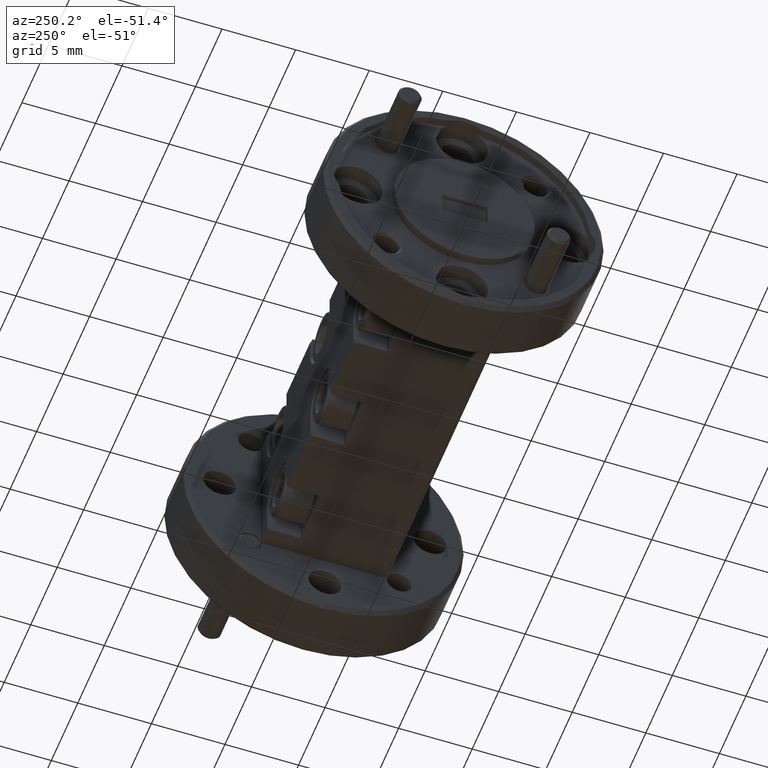
[diagram: clean part render]
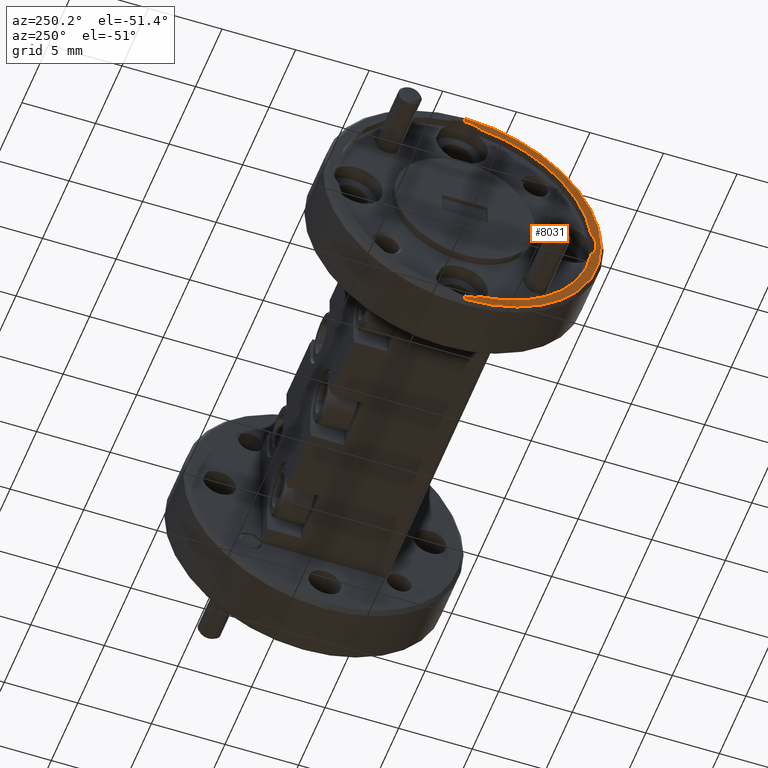
[diagram: same view with one face highlighted and labeled with its STEP entity id]
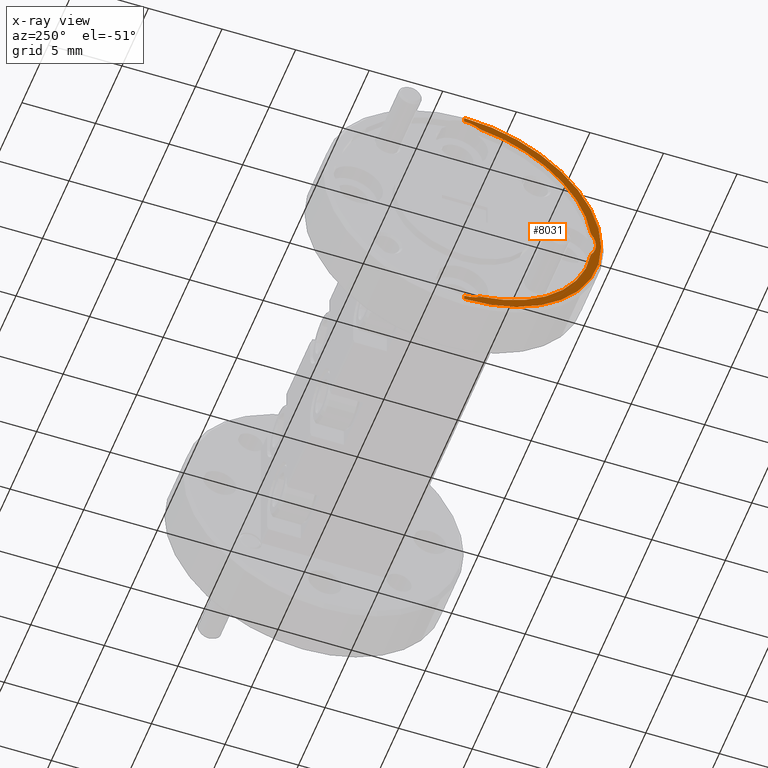
[diagram: x-ray of the same camera — body ghosted, the highlighted face saturated]
A machine part, auxiliary view. The second image highlights one B-rep face of the part: STEP entity #8031.
The next image is the same camera in x-ray: the body ghosted, the highlighted face saturated — about 0% of this face is hidden behind the body in this view.
In plain terms, the highlighted planar face has unit normal (1, -0, -0).
Its self-contained STEP definition (entity closure, byte-faithful):
#243 = AXIS2_PLACEMENT_3D ( 'NONE', #12226, #1145, #8569 ) ;
#263 = CARTESIAN_POINT ( 'NONE',  ( -0.1475487174971402138, 0.6950558021064788816, 0.5069535146820028926 ) ) ;
#264 = CARTESIAN_POINT ( 'NONE',  ( -0.1475487174971403248, 0.6950558021064788816, 1.223203514682003279 ) ) ;
#655 = DIRECTION ( 'NONE',  ( -1.000000000000000000, 2.674502495201554687E-33, 0.000000000000000000 ) ) ;
#667 = AXIS2_PLACEMENT_3D ( 'NONE', #2485, #10212, #1597 ) ;
#673 = CIRCLE ( 'NONE', #11764, 0.07000000000000007605 ) ;
#691 = CARTESIAN_POINT ( 'NONE',  ( -0.1475487174971403248, 0.6965558021064788274, 1.223187441408073894 ) ) ;
#812 = VERTEX_POINT ( 'NONE', #2473 ) ;
#864 = AXIS2_PLACEMENT_3D ( 'NONE', #6046, #2441, #9931 ) ;
#1145 = DIRECTION ( 'NONE',  ( -1.000000000000000000, 2.674502495201554687E-33, 0.000000000000000000 ) ) ;
#1268 = CIRCLE ( 'NONE', #667, 0.07000000000000007605 ) ;
#1277 = VECTOR ( 'NONE', #1289, 39.37007874015748143 ) ;
#1280 = DIRECTION ( 'NONE',  ( -5.551115123125781470E-17, 4.817955376316473998E-17, -1.000000000000000000 ) ) ;
#1289 = DIRECTION ( 'NONE',  ( -5.551115123125781470E-17, 4.817955376316473998E-17, -1.000000000000000000 ) ) ;
#1308 = DIRECTION ( 'NONE',  ( -1.000000000000000000, 2.674502495201554687E-33, 0.000000000000000000 ) ) ;
#1398 = VERTEX_POINT ( 'NONE', #3737 ) ;
#1418 = CARTESIAN_POINT ( 'NONE',  ( -0.1475487174971401860, 0.6965558021064788274, 0.4919535146820029348 ) ) ;
#1544 = CARTESIAN_POINT ( 'NONE',  ( -0.1475487174971401860, 0.6965558021064788274, 0.5069565968867972838 ) ) ;
#1597 = DIRECTION ( 'NONE',  ( 0.000000000000000000, 0.000000000000000000, 1.000000000000000000 ) ) ;
#1703 = CIRCLE ( 'NONE', #8855, 0.3400000000000001910 ) ;
#1731 = DIRECTION ( 'NONE',  ( -1.000000000000000000, 2.757206031840760911E-17, 5.551115123125781470E-17 ) ) ;
#1838 = PLANE ( 'NONE',  #10497 ) ;
#1927 = ORIENTED_EDGE ( 'NONE', *, *, #3516, .F. ) ;
#2213 = CARTESIAN_POINT ( 'NONE',  ( -0.1475487174971403248, 0.6965558021064788274, 0.5207195879559324281 ) ) ;
#2436 = EDGE_CURVE ( 'NONE', #1398, #3621, #1703, .T. ) ;
#2441 = DIRECTION ( 'NONE',  ( -1.000000000000000000, 2.757206031840760911E-17, 5.551115123125781470E-17 ) ) ;
#2473 = CARTESIAN_POINT ( 'NONE',  ( -0.1475487174971403248, 0.6950558021064788816, 0.5207035146820029325 ) ) ;
#2485 = CARTESIAN_POINT ( 'NONE',  ( -0.1475487174971403248, 0.6950558021064788816, 1.153203514682003439 ) ) ;
#3154 = AXIS2_PLACEMENT_3D ( 'NONE', #4404, #1731, #7328 ) ;
#3163 = DIRECTION ( 'NONE',  ( -1.000000000000000000, 2.674502495201554687E-33, 0.000000000000000000 ) ) ;
#3199 = CARTESIAN_POINT ( 'NONE',  ( -0.1475487174971401860, 0.6965558021064788274, 0.4919535146820029348 ) ) ;
#3278 = DIRECTION ( 'NONE',  ( -1.000000000000000000, 2.757206031840760911E-17, 5.551115123125781470E-17 ) ) ;
#3294 = DIRECTION ( 'NONE',  ( 0.000000000000000000, 0.000000000000000000, 1.000000000000000000 ) ) ;
#3480 = EDGE_CURVE ( 'NONE', #6902, #6556, #9770, .T. ) ;
#3516 = EDGE_CURVE ( 'NONE', #3621, #3519, #673, .T. ) ;
#3517 = DIRECTION ( 'NONE',  ( 0.000000000000000000, 0.000000000000000000, 1.000000000000000000 ) ) ;
#3519 = VERTEX_POINT ( 'NONE', #10132 ) ;
#3520 = AXIS2_PLACEMENT_3D ( 'NONE', #8976, #3278, #9776 ) ;
#3621 = VERTEX_POINT ( 'NONE', #5008 ) ;
#3737 = CARTESIAN_POINT ( 'NONE',  ( -0.1475487174971403248, 0.6532901538414271903, 0.5345285146820030198 ) ) ;
#3896 = AXIS2_PLACEMENT_3D ( 'NONE', #5038, #3163, #3294 ) ;
#3922 = ORIENTED_EDGE ( 'NONE', *, *, #11012, .T. ) ;
#4006 = CARTESIAN_POINT ( 'NONE',  ( -0.1475487174971403248, 0.6950558021064788816, 0.8719535146820031057 ) ) ;
#4267 = ORIENTED_EDGE ( 'NONE', *, *, #2436, .F. ) ;
#4298 = CARTESIAN_POINT ( 'NONE',  ( -0.1475487174971401860, 0.3165558021064788785, 0.4919535146820029348 ) ) ;
#4370 = DIRECTION ( 'NONE',  ( 0.000000000000000000, 0.000000000000000000, 1.000000000000000000 ) ) ;
#4404 = CARTESIAN_POINT ( 'NONE',  ( -0.1475487174971401860, 0.6950558021064788816, 0.8719535146820031057 ) ) ;
#4462 = ORIENTED_EDGE ( 'NONE', *, *, #10183, .F. ) ;
#4660 = VECTOR ( 'NONE', #1280, 39.37007874015748143 ) ;
#4681 = VERTEX_POINT ( 'NONE', #2213 ) ;
#4903 = EDGE_CURVE ( 'NONE', #5896, #9732, #9008, .T. ) ;
#5008 = CARTESIAN_POINT ( 'NONE',  ( -0.1475487174971403248, 0.3576308021064788512, 0.8301878664169515254 ) ) ;
#5013 = CIRCLE ( 'NONE', #243, 0.07000000000000007605 ) ;
#5038 = CARTESIAN_POINT ( 'NONE',  ( -0.1475487174971403248, 0.6950558021064788816, 0.5907035146820029947 ) ) ;
#5110 = VERTEX_POINT ( 'NONE', #263 ) ;
#5121 = EDGE_LOOP ( 'NONE', ( #3922, #8554, #7275, #9056, #5304, #10750, #6415, #4462, #1927, #4267, #8469, #8333 ) ) ;
#5144 = EDGE_CURVE ( 'NONE', #5110, #10866, #9961, .T. ) ;
#5257 = CARTESIAN_POINT ( 'NONE',  ( -0.1475487174971403248, 0.4138058021064788261, 0.8719535146820031057 ) ) ;
#5288 = FACE_OUTER_BOUND ( 'NONE', #5121, .T. ) ;
#5304 = ORIENTED_EDGE ( 'NONE', *, *, #3480, .T. ) ;
#5641 = DIRECTION ( 'NONE',  ( 1.000000000000000000, -2.757206031840761220E-17, -5.551115123125781470E-17 ) ) ;
#5739 = VERTEX_POINT ( 'NONE', #1544 ) ;
#5896 = VERTEX_POINT ( 'NONE', #10272 ) ;
#6046 = CARTESIAN_POINT ( 'NONE',  ( -0.1475487174971401860, 0.6950558021064788816, 0.8719535146820031057 ) ) ;
#6161 = DIRECTION ( 'NONE',  ( 0.000000000000000000, 0.000000000000000000, 1.000000000000000000 ) ) ;
#6283 = CARTESIAN_POINT ( 'NONE',  ( -0.1475487174971401860, 0.6965558021064788274, 1.236950432477208928 ) ) ;
#6415 = ORIENTED_EDGE ( 'NONE', *, *, #4903, .F. ) ;
#6556 = VERTEX_POINT ( 'NONE', #691 ) ;
#6590 = EDGE_CURVE ( 'NONE', #812, #1398, #5013, .T. ) ;
#6650 = AXIS2_PLACEMENT_3D ( 'NONE', #9860, #1308, #6161 ) ;
#6902 = VERTEX_POINT ( 'NONE', #6283 ) ;
#7217 = EDGE_CURVE ( 'NONE', #5739, #5110, #10638, .T. ) ;
#7275 = ORIENTED_EDGE ( 'NONE', *, *, #5144, .T. ) ;
#7328 = DIRECTION ( 'NONE',  ( 4.677821906959350436E-17, 0.000000000000000000, 1.000000000000000000 ) ) ;
#7777 = DIRECTION ( 'NONE',  ( -1.000000000000000000, 2.674502495201554687E-33, 0.000000000000000000 ) ) ;
#8031 = ADVANCED_FACE ( 'NONE', ( #5288 ), #1838, .F. ) ;
#8081 = DIRECTION ( 'NONE',  ( 5.551115123125781470E-17, -4.817955376316474614E-17, 1.000000000000000000 ) ) ;
#8333 = ORIENTED_EDGE ( 'NONE', *, *, #10139, .F. ) ;
#8469 = ORIENTED_EDGE ( 'NONE', *, *, #6590, .F. ) ;
#8554 = ORIENTED_EDGE ( 'NONE', *, *, #7217, .T. ) ;
#8569 = DIRECTION ( 'NONE',  ( 0.000000000000000000, 0.000000000000000000, 1.000000000000000000 ) ) ;
#8855 = AXIS2_PLACEMENT_3D ( 'NONE', #4006, #7777, #9557 ) ;
#8976 = CARTESIAN_POINT ( 'NONE',  ( -0.1475487174971401860, 0.6950558021064788816, 0.8719535146820031057 ) ) ;
#9008 = CIRCLE ( 'NONE', #11575, 0.07000000000000007605 ) ;
#9056 = ORIENTED_EDGE ( 'NONE', *, *, #11427, .T. ) ;
#9129 = EDGE_CURVE ( 'NONE', #9732, #6556, #1268, .T. ) ;
#9316 = CARTESIAN_POINT ( 'NONE',  ( -0.1475487174971403248, 0.6950558021064788816, 1.153203514682003439 ) ) ;
#9557 = DIRECTION ( 'NONE',  ( 0.000000000000000000, 0.000000000000000000, 1.000000000000000000 ) ) ;
#9732 = VERTEX_POINT ( 'NONE', #264 ) ;
#9770 = LINE ( 'NONE', #1418, #1277 ) ;
#9776 = DIRECTION ( 'NONE',  ( 4.677821906959350436E-17, 0.000000000000000000, 1.000000000000000000 ) ) ;
#9802 = CIRCLE ( 'NONE', #6650, 0.3400000000000001910 ) ;
#9860 = CARTESIAN_POINT ( 'NONE',  ( -0.1475487174971403248, 0.6950558021064788816, 0.8719535146820031057 ) ) ;
#9931 = DIRECTION ( 'NONE',  ( 4.677821906959350436E-17, 0.000000000000000000, 1.000000000000000000 ) ) ;
#9961 = CIRCLE ( 'NONE', #864, 0.3650000000000003242 ) ;
#10132 = CARTESIAN_POINT ( 'NONE',  ( -0.1475487174971403248, 0.3576308021064788512, 0.9137191629470546861 ) ) ;
#10139 = EDGE_CURVE ( 'NONE', #4681, #812, #11595, .T. ) ;
#10183 = EDGE_CURVE ( 'NONE', #3519, #5896, #9802, .T. ) ;
#10212 = DIRECTION ( 'NONE',  ( -1.000000000000000000, 2.674502495201554687E-33, 0.000000000000000000 ) ) ;
#10272 = CARTESIAN_POINT ( 'NONE',  ( -0.1475487174971403248, 0.6532901538414268572, 1.209378514682003081 ) ) ;
#10497 = AXIS2_PLACEMENT_3D ( 'NONE', #4298, #5641, #8081 ) ;
#10638 = CIRCLE ( 'NONE', #3520, 0.3650000000000003242 ) ;
#10750 = ORIENTED_EDGE ( 'NONE', *, *, #9129, .F. ) ;
#10866 = VERTEX_POINT ( 'NONE', #11458 ) ;
#11012 = EDGE_CURVE ( 'NONE', #4681, #5739, #11690, .T. ) ;
#11055 = CIRCLE ( 'NONE', #3154, 0.3650000000000003242 ) ;
#11228 = DIRECTION ( 'NONE',  ( -1.000000000000000000, 2.674502495201554687E-33, 0.000000000000000000 ) ) ;
#11427 = EDGE_CURVE ( 'NONE', #10866, #6902, #11055, .T. ) ;
#11458 = CARTESIAN_POINT ( 'NONE',  ( -0.1475487174971401583, 0.6950558021064788816, 1.236953514682003430 ) ) ;
#11575 = AXIS2_PLACEMENT_3D ( 'NONE', #9316, #11228, #4370 ) ;
#11595 = CIRCLE ( 'NONE', #3896, 0.07000000000000007605 ) ;
#11690 = LINE ( 'NONE', #3199, #4660 ) ;
#11764 = AXIS2_PLACEMENT_3D ( 'NONE', #5257, #655, #3517 ) ;
#12226 = CARTESIAN_POINT ( 'NONE',  ( -0.1475487174971403248, 0.6950558021064788816, 0.5907035146820029947 ) ) ;